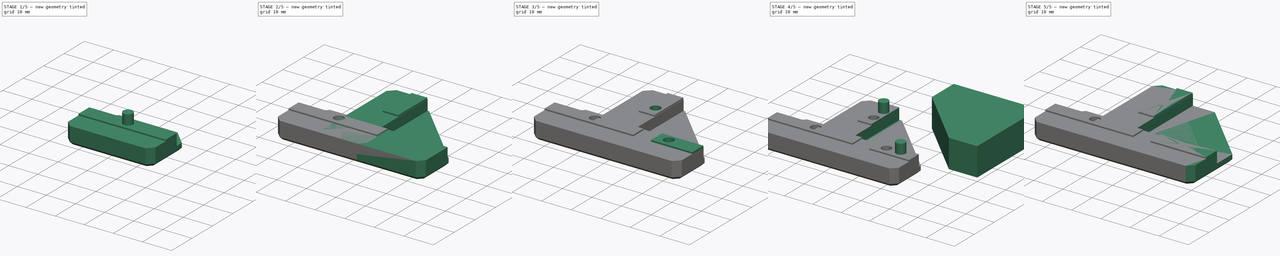
[diagram: build sequence overview — one tinted view per stage of 5, left to right]
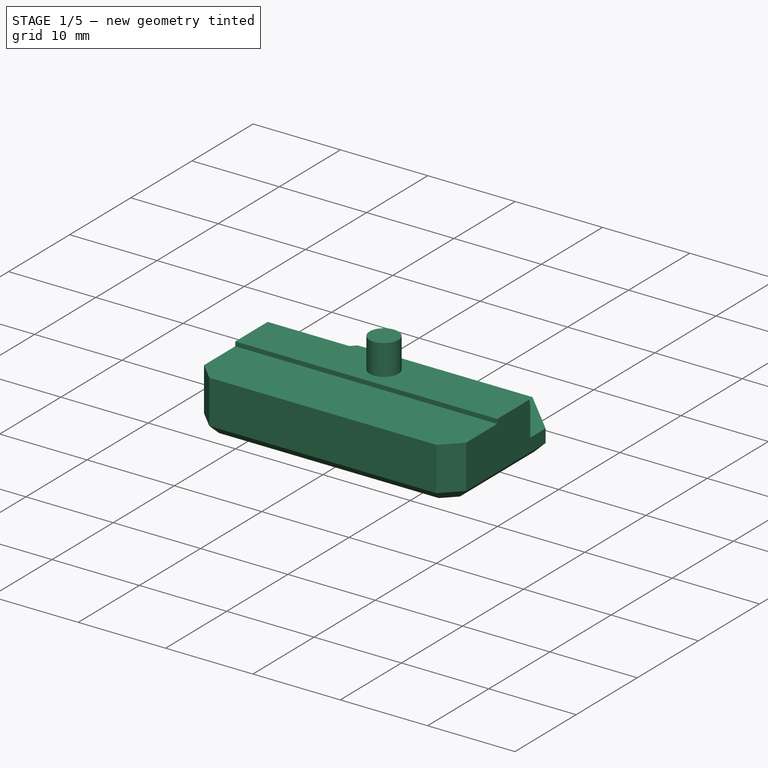
[diagram: stage 1 of 5 — iso view after this stage's code; geometry added in this stage tinted green]
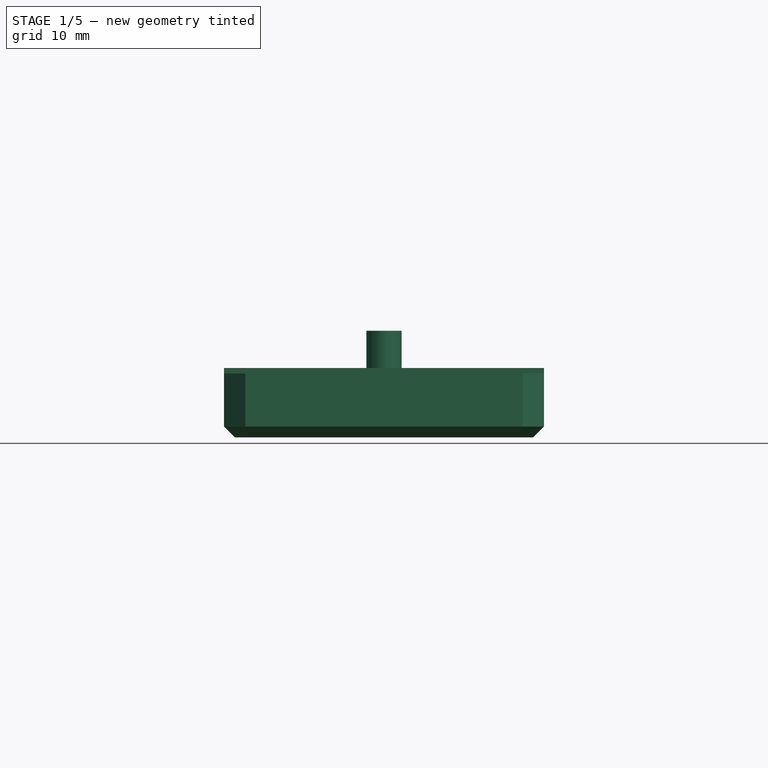
[diagram: stage 1 of 5 — front view after this stage's code; geometry added in this stage tinted green]
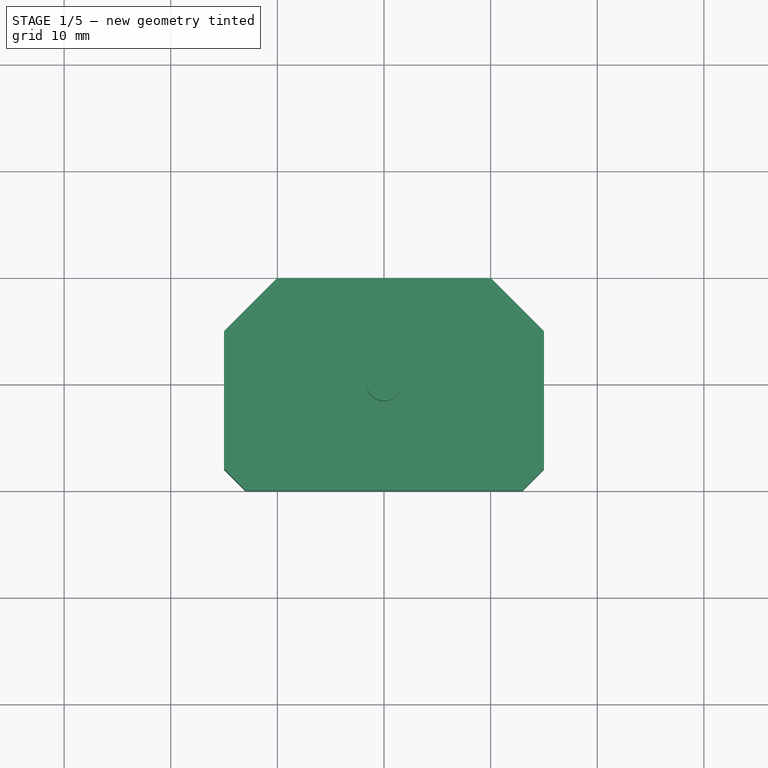
[diagram: stage 1 of 5 — top view after this stage's code; geometry added in this stage tinted green]
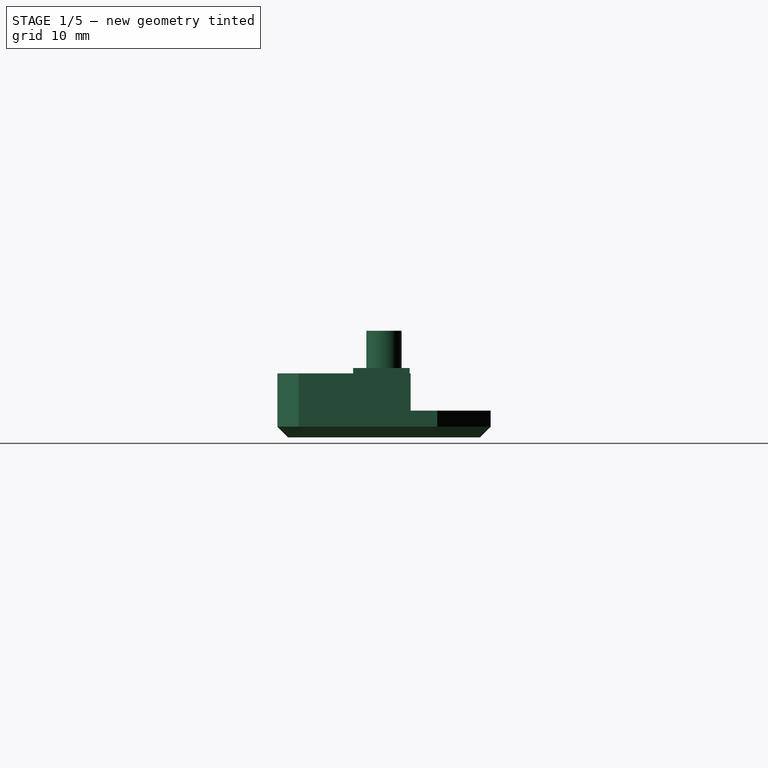
[diagram: stage 1 of 5 — right view after this stage's code; geometry added in this stage tinted green]
FCSTD DOCUMENT  (FreeCAD 0.19R24291 (Git))
Label: panel-mount
License: Other
LicenseURL: GPL3
objects: Part::Box×12, Part::MultiFuse×11, Part::Cylinder×10, Part::Chamfer×9, Part::Cut×7, PartDesign::FeatureBase×2, Sketcher::SketchObject×2, PartDesign::Pocket×2, PartDesign::Body×2
note: 59 computed .brp shape members not serialized (recipe doc carries the construction recipe); baked Part::Feature solids carry a one-line shape summary decoded from their .brp

FEATURE [Part::Box] Box004  label="Cube004"
  AttacherType = Attacher::AttachEngine3D
  Height = 6
  Length = 30
  Placement = pos=(-15,0,0) rot=(0,0,1;0rad)
  Width = 20
FEATURE [Part::Box] Box005  label="Cube005"
  AttacherType = Attacher::AttachEngine3D
  Height = 6
  Length = 40
  Placement = pos=(-20,12.5,2.5) rot=(0,0,1;0rad)
  Width = 30
FEATURE [Part::Box] Box006  label="Cube006"
  AttacherType = Attacher::AttachEngine3D
  Height = 0.5
  Length = 30
  Placement = pos=(-15,7.1,6) rot=(0,0,1;0rad)
  Width = 5.3
FEATURE [Part::Cylinder] Cylinder004
  Angle = 360
  AttacherType = Attacher::AttachEngine3D
  Height = 10
  Placement = pos=(0,10,0) rot=(0,0,1;0rad)
  Radius = 1.65
FEATURE [Part::Cylinder] Cylinder005
  Angle = 360
  AttacherType = Attacher::AttachEngine3D
  Height = 2
  Placement = pos=(0,10,0) rot=(0,0,1;0rad)
  Radius = 3
FEATURE [Part::MultiFuse] Fusion005
  Shapes = -> [Cylinder005,Cylinder004]
FEATURE [Part::Cut] Cut005
  Base = -> Box004
  Tool = -> Box005
FEATURE [Part::MultiFuse] Fusion006
  Shapes = -> [Cut005,Box006]
FEATURE [Part::Chamfer] Chamfer007
  Base = -> Fusion006
  Edges = 2 edges r=5: [Edge6,Edge22]
FEATURE [Part::Chamfer] Chamfer008
  Base = -> Chamfer007
  Edges = 2 edges r=2: [Edge6,Edge24]
FEATURE [Part::Chamfer] Chamfer009
  Base = -> Chamfer008
  Edges = 8 edges r=1: [Edge3,Edge14,Edge19,Edge20,Edge21,Edge22,Edge23,Edge24]
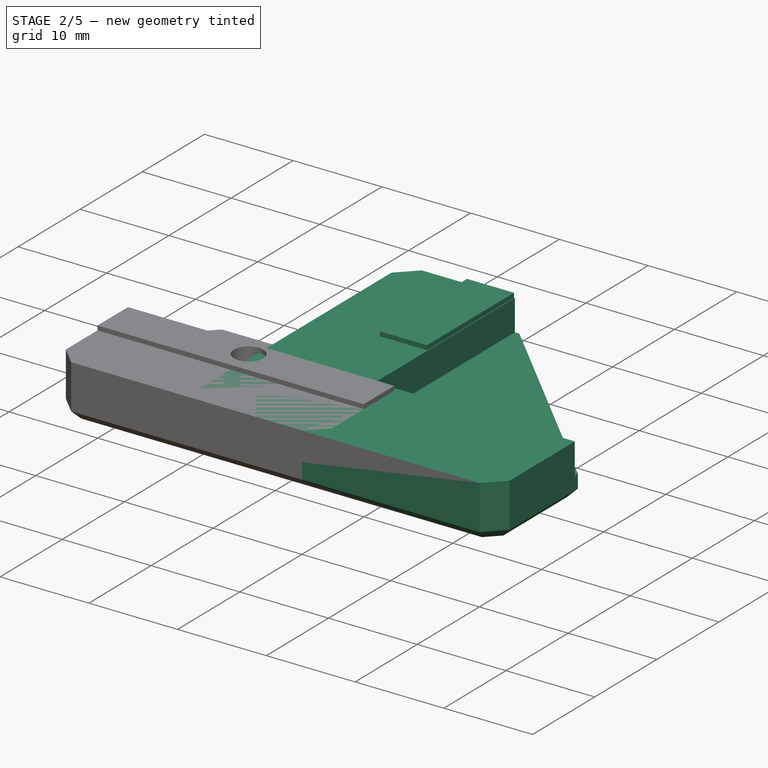
[diagram: stage 2 of 5 — iso view after this stage's code; geometry added in this stage tinted green]
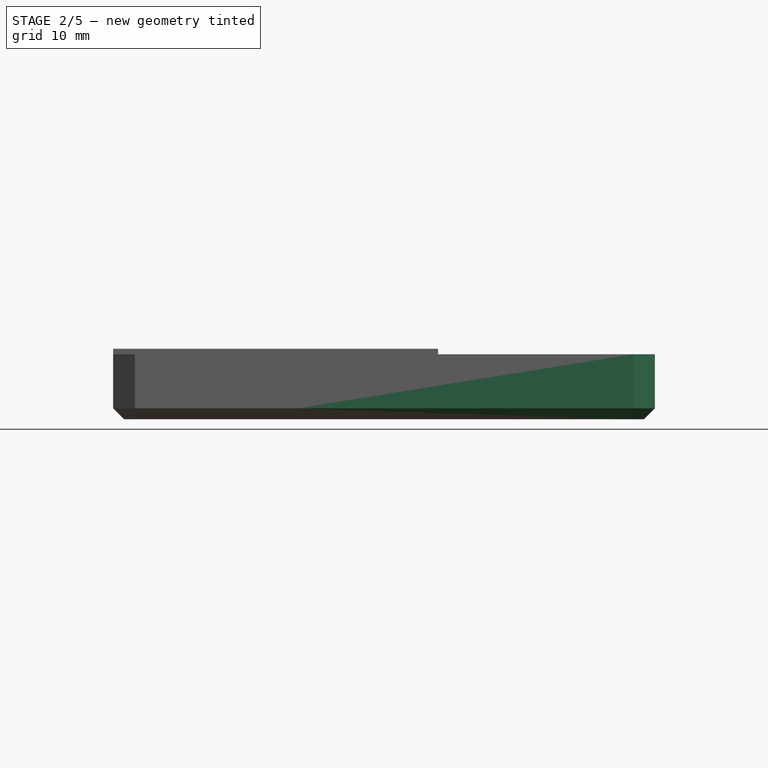
[diagram: stage 2 of 5 — front view after this stage's code; geometry added in this stage tinted green]
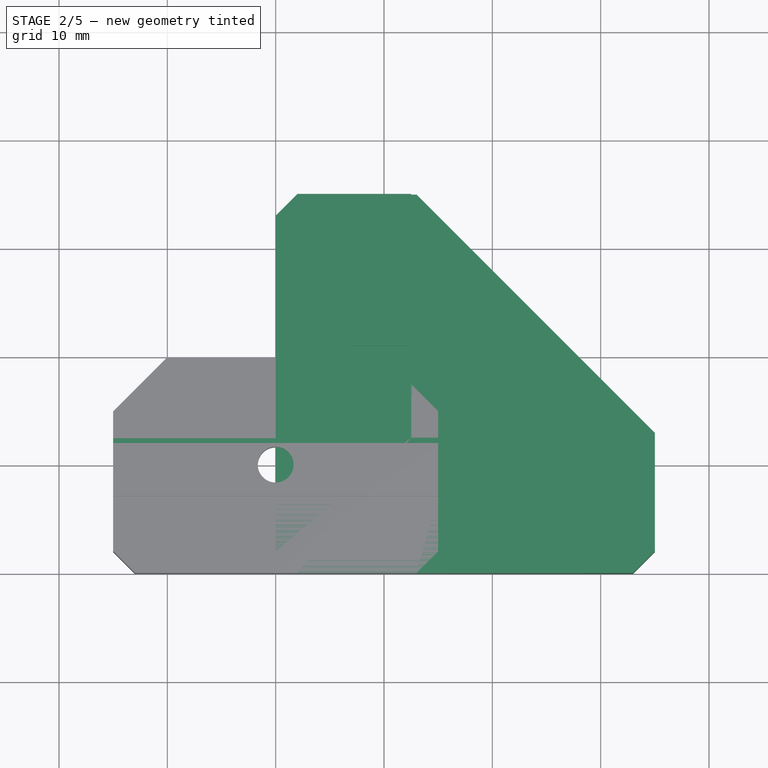
[diagram: stage 2 of 5 — top view after this stage's code; geometry added in this stage tinted green]
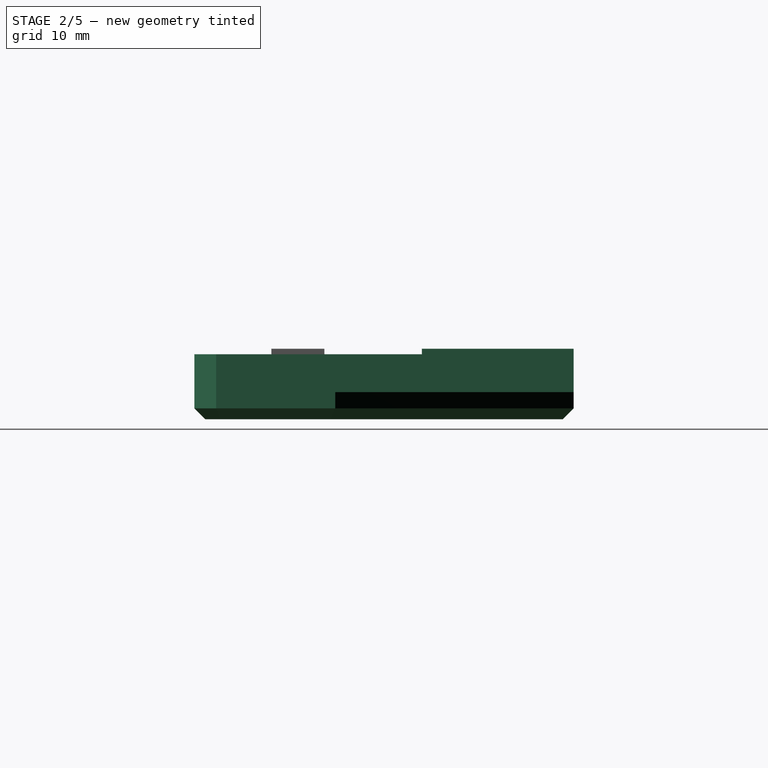
[diagram: stage 2 of 5 — right view after this stage's code; geometry added in this stage tinted green]
FEATURE [Part::Box] Box  label="Cube"
  AttacherType = Attacher::AttachEngine3D
  Height = 6
  Length = 35
  Width = 35
FEATURE [Part::Box] Box001  label="Cube001"
  AttacherType = Attacher::AttachEngine3D
  Height = 6
  Length = 35
  Placement = pos=(12.5,12.5,2.5) rot=(0,0,1;0rad)
  Width = 35
FEATURE [Part::Cut] Cut
  Base = -> Box
  Tool = -> Box001
FEATURE [Part::Chamfer] Chamfer
  Base = -> Cut
  Edges = 1 edges r=22: [Edge12]
FEATURE [Part::Chamfer] Chamfer001
  Base = -> Chamfer
  Edges = 3 edges r=2: [Edge4,Edge22,Edge24]
FEATURE [Part::Box] Box003  label="Cube003"
  AttacherType = Attacher::AttachEngine3D
  Height = 0.5
  Length = 5.3
  Placement = pos=(7.1,21,6) rot=(0,0,1;0rad)
  Width = 14
FEATURE [Part::Chamfer] Chamfer006
  Base = -> Chamfer001
  Edges = 8 edges r=1: [Edge1,Edge7,Edge8,Edge9,Edge10,Edge11,Edge12,Edge13]
FEATURE [Part::Cut] Cut006
  Base = -> Chamfer009
  Tool = -> Fusion005
FEATURE [PartDesign::Body] Body
  BaseFeature = -> Cut004
  Group = -> [BaseFeature,Sketch,Pocket]
  Origin = -> Origin
  Tip = -> Pocket
FEATURE [PartDesign::FeatureBase] BaseFeature001
  BaseFeature = -> Cut006
FEATURE [Sketcher::SketchObject] Sketch001
  FullyConstrained = false
  MapMode = 5
  Placement = pos=(0,0,6.5) rot=(0,0,1;0rad)
  Support = -> [BaseFeature001]
  sketch-geometry (4):
    g0: LineSegment StartX=-16 StartY=12 StartZ=0 EndX=16 EndY=12 EndZ=0
    g1: LineSegment StartX=16 StartY=12 StartZ=0 EndX=16 EndY=21 EndZ=0
    g2: LineSegment StartX=16 StartY=21 StartZ=0 EndX=-16 EndY=21 EndZ=0
    g3: LineSegment StartX=-16 StartY=21 StartZ=0 EndX=-16 EndY=12 EndZ=0
  constraints (8):
    c: Coincident(g0,g1)
    c: Coincident(g1,g2)
    c: Coincident(g2,g3)
    c: Coincident(g3,g0)
    c: Horizontal(g0)
    c: Horizontal(g2)
    c: Vertical(g1)
    c: Vertical(g3)
FEATURE [PartDesign::Pocket] Pocket001
  BaseFeature = -> BaseFeature001
  Length = 0
  Length2 = 100
  Profile = -> Sketch001
  Type = 3
  UpToFace = -> BaseFeature001 [Face5]
FEATURE [PartDesign::Body] Body001
  BaseFeature = -> Cut006
  Group = -> [BaseFeature001,Sketch001,Pocket001]
  Origin = -> Origin001
  Tip = -> Pocket001
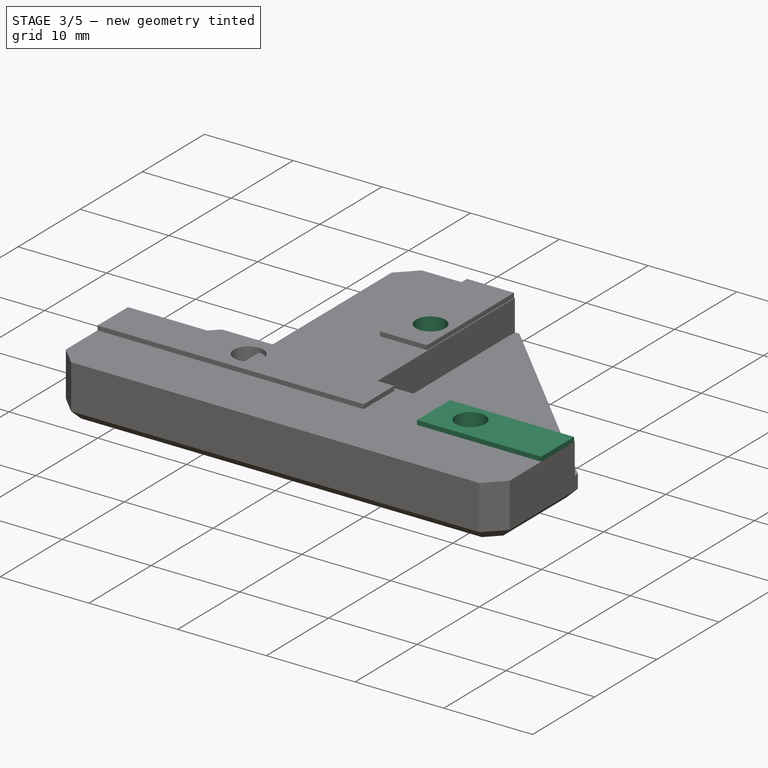
[diagram: stage 3 of 5 — iso view after this stage's code; geometry added in this stage tinted green]
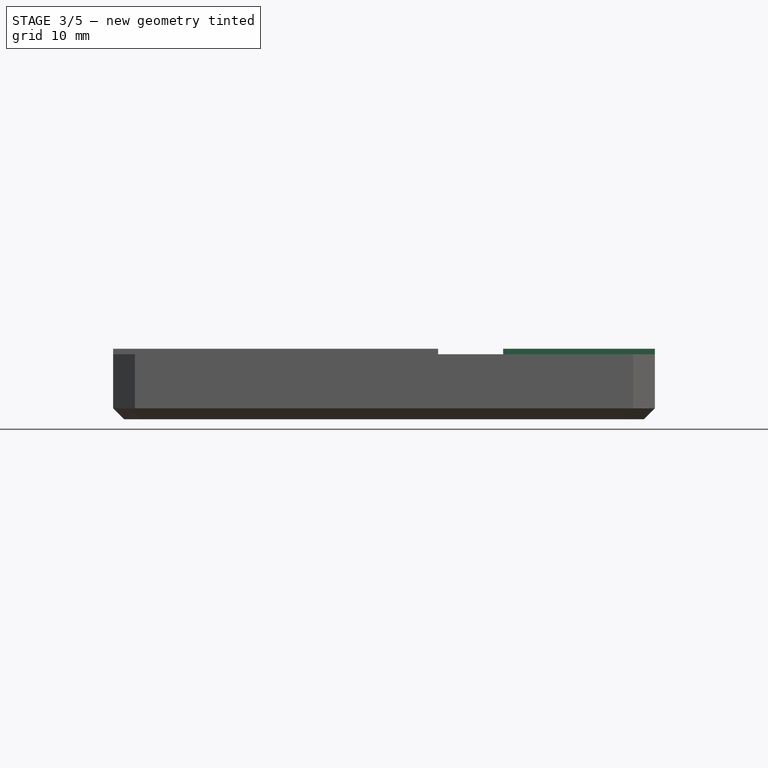
[diagram: stage 3 of 5 — front view after this stage's code; geometry added in this stage tinted green]
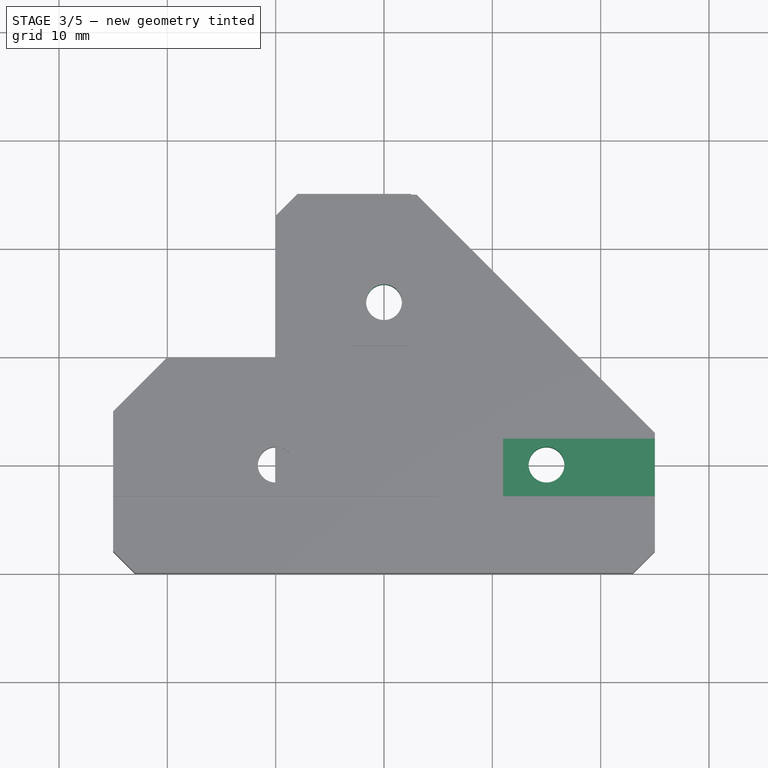
[diagram: stage 3 of 5 — top view after this stage's code; geometry added in this stage tinted green]
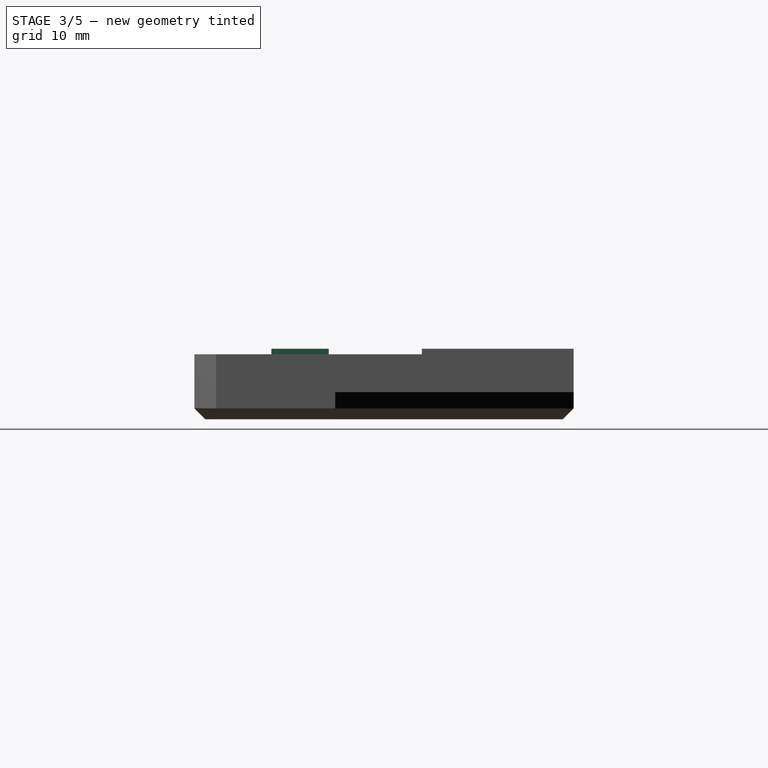
[diagram: stage 3 of 5 — right view after this stage's code; geometry added in this stage tinted green]
FEATURE [Part::Box] Box002  label="Cube002"
  AttacherType = Attacher::AttachEngine3D
  Height = 0.5
  Length = 14
  Placement = pos=(21,7.1,6) rot=(0,0,1;0rad)
  Width = 5.3
FEATURE [Part::Cylinder] Cylinder
  Angle = 360
  AttacherType = Attacher::AttachEngine3D
  Height = 2
  Placement = pos=(25,10,0) rot=(0,0,1;0rad)
  Radius = 3
FEATURE [Part::Cylinder] Cylinder001
  Angle = 360
  AttacherType = Attacher::AttachEngine3D
  Height = 2
  Placement = pos=(10,25,0) rot=(0,0,1;0rad)
  Radius = 3
FEATURE [Part::Cylinder] Cylinder002
  Angle = 360
  AttacherType = Attacher::AttachEngine3D
  Height = 10
  Placement = pos=(10,25,0) rot=(0,0,1;0rad)
  Radius = 1.65
FEATURE [Part::Cylinder] Cylinder003
  Angle = 360
  AttacherType = Attacher::AttachEngine3D
  Height = 10
  Placement = pos=(25,10,0) rot=(0,0,1;0rad)
  Radius = 1.65
FEATURE [Part::MultiFuse] Fusion001
  Shapes = -> [Cylinder003,Cylinder002]
FEATURE [Part::MultiFuse] Fusion002
  Shapes = -> [Cylinder001,Cylinder]
FEATURE [Part::MultiFuse] Fusion003
  Shapes = -> [Fusion002,Fusion001]
FEATURE [Part::MultiFuse] Fusion
  Shapes = -> [Chamfer006,Box003,Box002]
FEATURE [Part::Cut] Cut004
  Base = -> Fusion
  Tool = -> Fusion003
FEATURE [PartDesign::FeatureBase] BaseFeature
  BaseFeature = -> Cut004
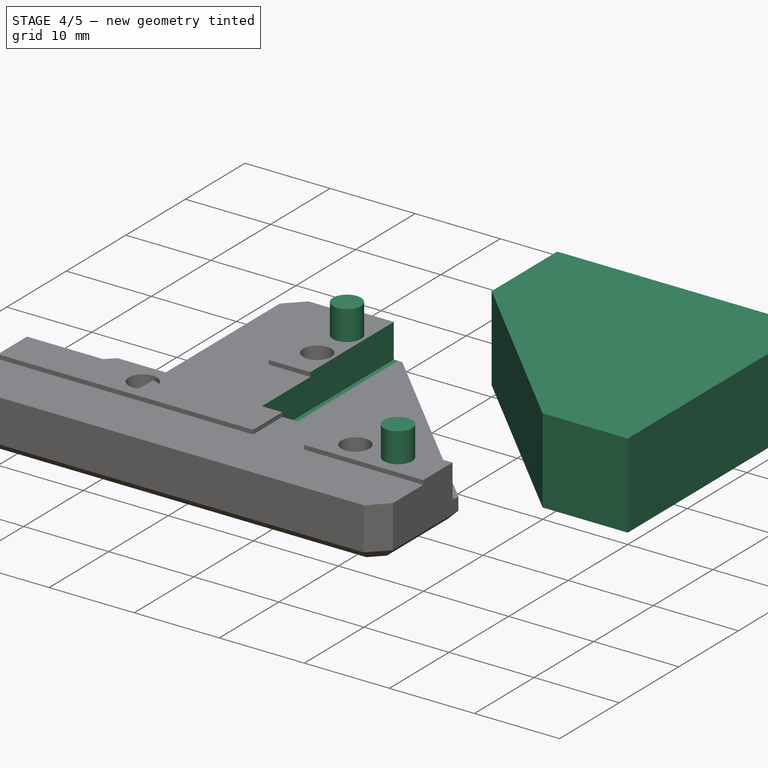
[diagram: stage 4 of 5 — iso view after this stage's code; geometry added in this stage tinted green]
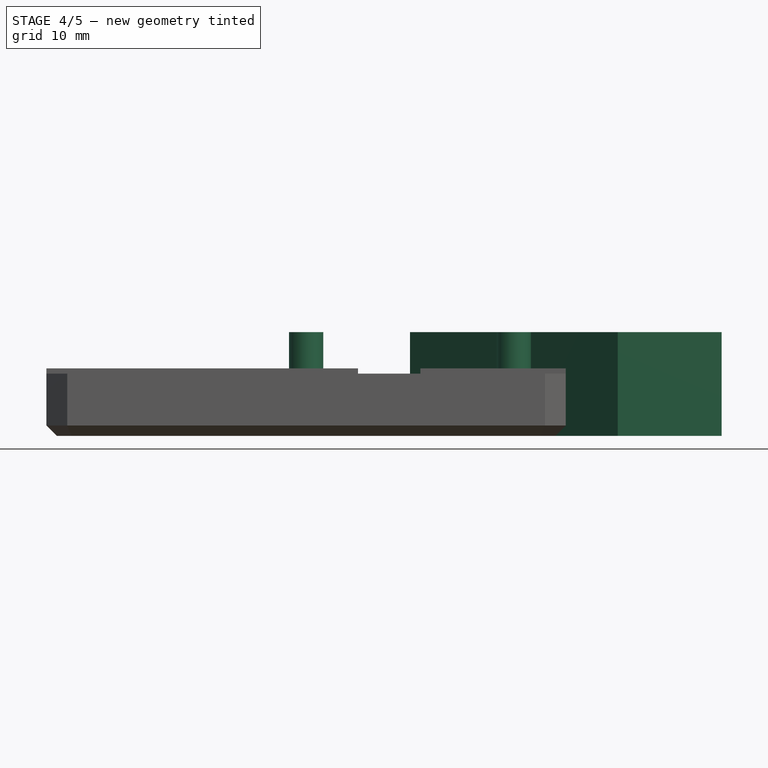
[diagram: stage 4 of 5 — front view after this stage's code; geometry added in this stage tinted green]
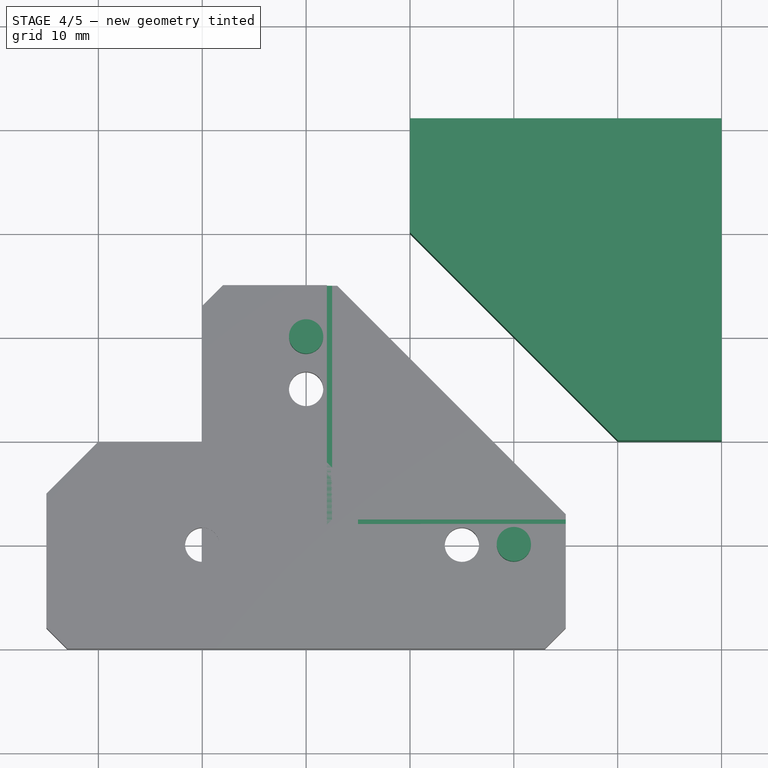
[diagram: stage 4 of 5 — top view after this stage's code; geometry added in this stage tinted green]
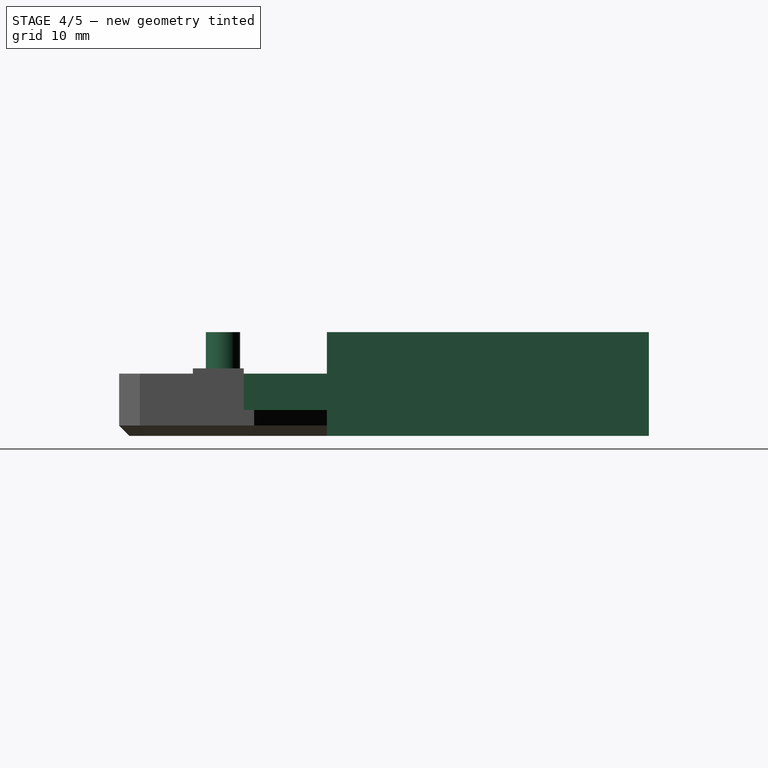
[diagram: stage 4 of 5 — right view after this stage's code; geometry added in this stage tinted green]
FEATURE [Part::Cylinder] Cylinder006
  Angle = 360
  AttacherType = Attacher::AttachEngine3D
  Height = 2
  Placement = pos=(10,25,0) rot=(0,0,1;0rad)
  Radius = 3
FEATURE [Part::Cylinder] Cylinder007
  Angle = 360
  AttacherType = Attacher::AttachEngine3D
  Height = 10
  Placement = pos=(10,25,0) rot=(0,0,1;0rad)
  Radius = 1.65
FEATURE [Part::Cylinder] Cylinder008
  Angle = 360
  AttacherType = Attacher::AttachEngine3D
  Height = 2
  Placement = pos=(25,10,0) rot=(0,0,1;0rad)
  Radius = 3
FEATURE [Part::Cylinder] Cylinder009
  Angle = 360
  AttacherType = Attacher::AttachEngine3D
  Height = 10
  Placement = pos=(25,10,0) rot=(0,0,1;0rad)
  Radius = 1.65
FEATURE [Part::MultiFuse] Fusion008
  Placement = pos=(5,0,0) rot=(0,0,1;0rad)
  Shapes = -> [Cylinder008,Cylinder009]
FEATURE [Part::MultiFuse] Fusion009
  Placement = pos=(0,5,0) rot=(0,0,1;0rad)
  Shapes = -> [Cylinder007,Cylinder006]
FEATURE [Part::Box] Box011  label="Cube011"
  AttacherType = Attacher::AttachEngine3D
  Height = 10
  Length = 30
  Placement = pos=(20,20,0) rot=(0,0,1;0rad)
  Width = 31
FEATURE [Part::Chamfer] Chamfer010
  Base = -> Box011
  Edges = 1 edges r=20: [Edge1]
FEATURE [Part::MultiFuse] Fusion011
  Shapes = -> [Fusion009,Fusion008]
FEATURE [Sketcher::SketchObject] Sketch
  FullyConstrained = false
  MapMode = 5
  Placement = pos=(0,0,6.5) rot=(0,0,1;0rad)
  Support = -> [BaseFeature]
  sketch-geometry (4):
    g0: LineSegment StartX=12 StartY=37 StartZ=0 EndX=36 EndY=37 EndZ=0
    g1: LineSegment StartX=36 StartY=37 StartZ=0 EndX=36 EndY=12 EndZ=0
    g2: LineSegment StartX=36 StartY=12 StartZ=0 EndX=12 EndY=12 EndZ=0
    g3: LineSegment StartX=12 StartY=12 StartZ=0 EndX=12 EndY=37 EndZ=0
  constraints (8):
    c: Coincident(g0,g1)
    c: Coincident(g1,g2)
    c: Coincident(g2,g3)
    c: Coincident(g3,g0)
    c: Horizontal(g0)
    c: Horizontal(g2)
    c: Vertical(g1)
    c: Vertical(g3)
FEATURE [PartDesign::Pocket] Pocket
  BaseFeature = -> BaseFeature
  Length = 0
  Length2 = 100
  Profile = -> Sketch
  Type = 3
  UpToFace = -> BaseFeature [Face6]
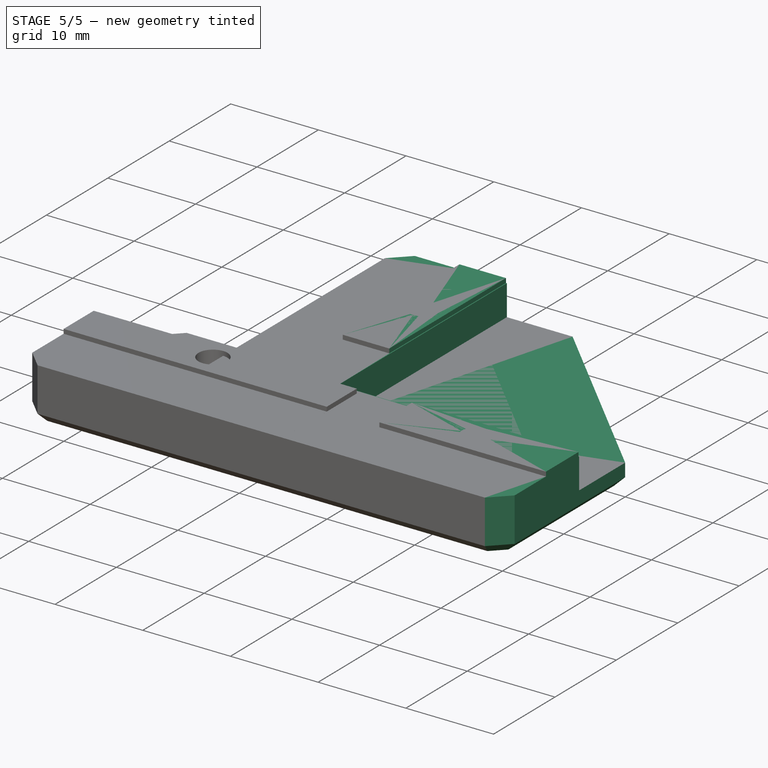
[diagram: stage 5 of 5 — iso view after this stage's code; geometry added in this stage tinted green]
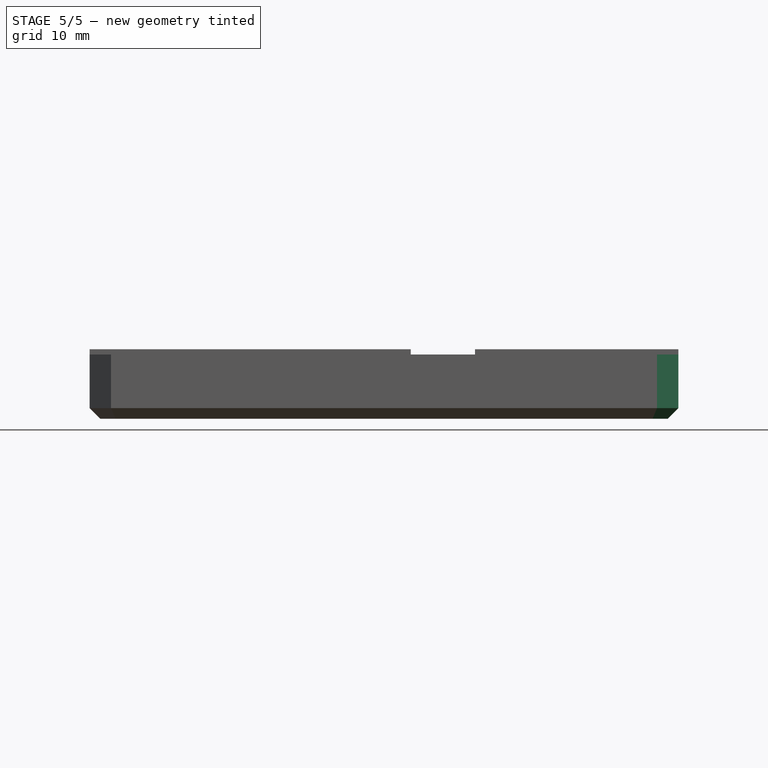
[diagram: stage 5 of 5 — front view after this stage's code; geometry added in this stage tinted green]
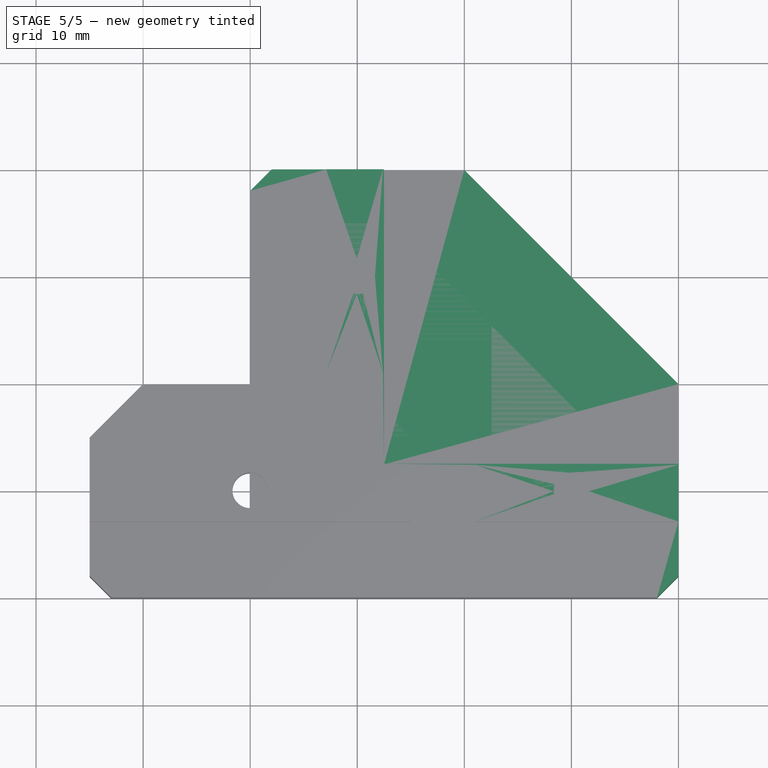
[diagram: stage 5 of 5 — top view after this stage's code; geometry added in this stage tinted green]
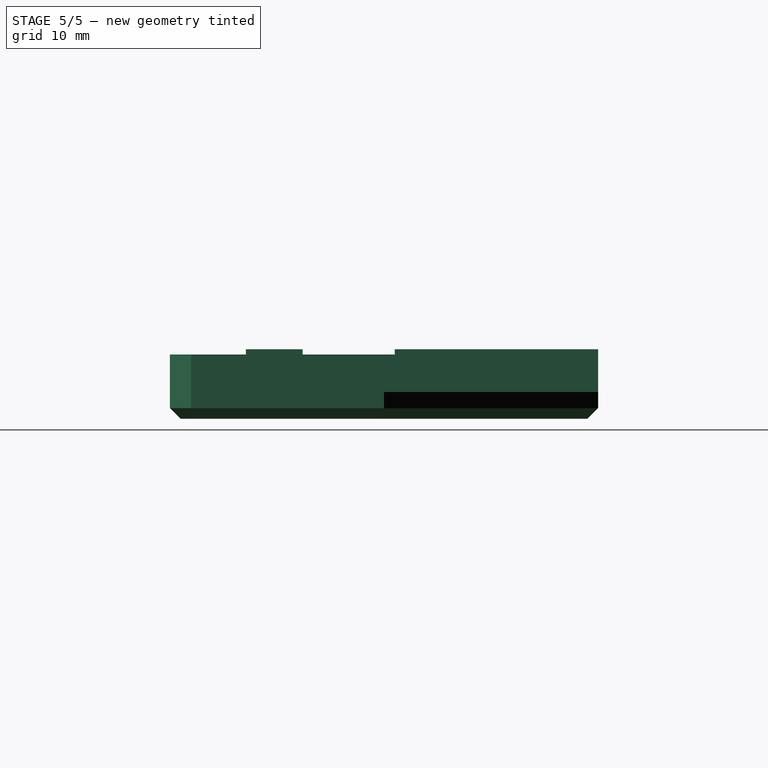
[diagram: stage 5 of 5 — right view after this stage's code; geometry added in this stage tinted green]
FEATURE [Part::Box] Box007  label="Cube007"
  AttacherType = Attacher::AttachEngine3D
  Height = 6
  Length = 35
  Placement = pos=(12.5,12.5,2.5) rot=(0,0,1;0rad)
  Width = 35
FEATURE [Part::Box] Box008  label="Cube008"
  AttacherType = Attacher::AttachEngine3D
  Height = 0.5
  Length = 19
  Placement = pos=(21,7.1,6) rot=(0,0,1;0rad)
  Width = 5.3
FEATURE [Part::Box] Box009  label="Cube009"
  AttacherType = Attacher::AttachEngine3D
  Height = 6
  Length = 40
  Width = 40
FEATURE [Part::Box] Box010  label="Cube010"
  AttacherType = Attacher::AttachEngine3D
  Height = 0.5
  Length = 5.3
  Placement = pos=(7.1,21,6) rot=(0,0,1;0rad)
  Width = 19
FEATURE [Part::Cut] Cut007
  Base = -> Box009
  Tool = -> Box007
FEATURE [Part::MultiFuse] Fusion007
  Shapes = -> [Box010,Box008]
FEATURE [Part::Cut] Cut008
  Base = -> Cut007
  Tool = -> Chamfer010
FEATURE [Part::Chamfer] Chamfer011
  Base = -> Cut008
  Edges = 3 edges r=2: [Edge1,Edge3,Edge6]
FEATURE [Part::Chamfer] Chamfer012
  Base = -> Chamfer011
  Edges = 8 edges r=1: [Edge3,Edge13,Edge15,Edge17,Edge18,Edge19,Edge20,Edge21]
FEATURE [Part::MultiFuse] Fusion010
  Shapes = -> [Fusion007,Chamfer012]
FEATURE [Part::Cut] Cut009
  Base = -> Fusion010
  Tool = -> Fusion011
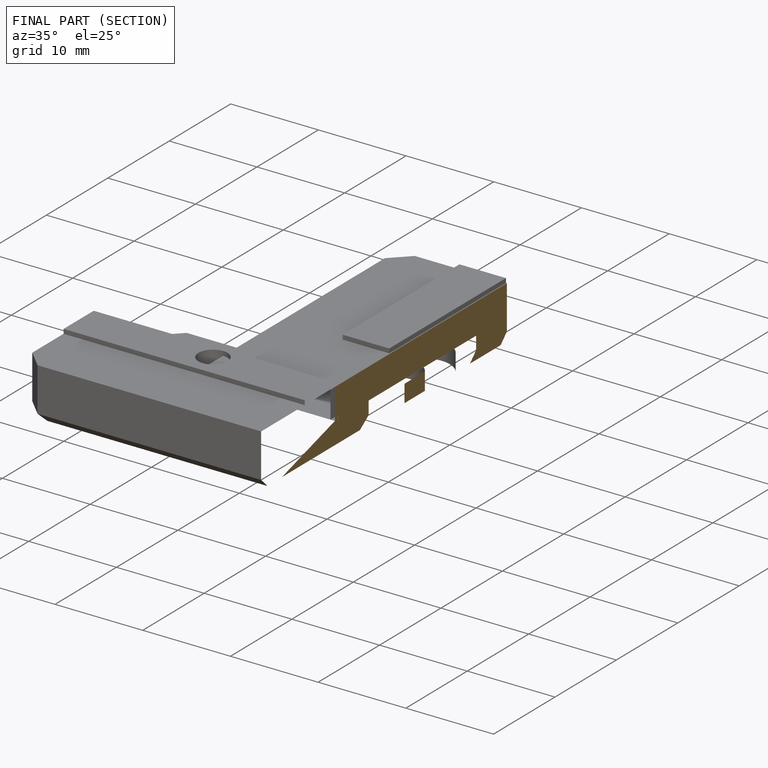
[diagram: finished part — half-section view (interior)]
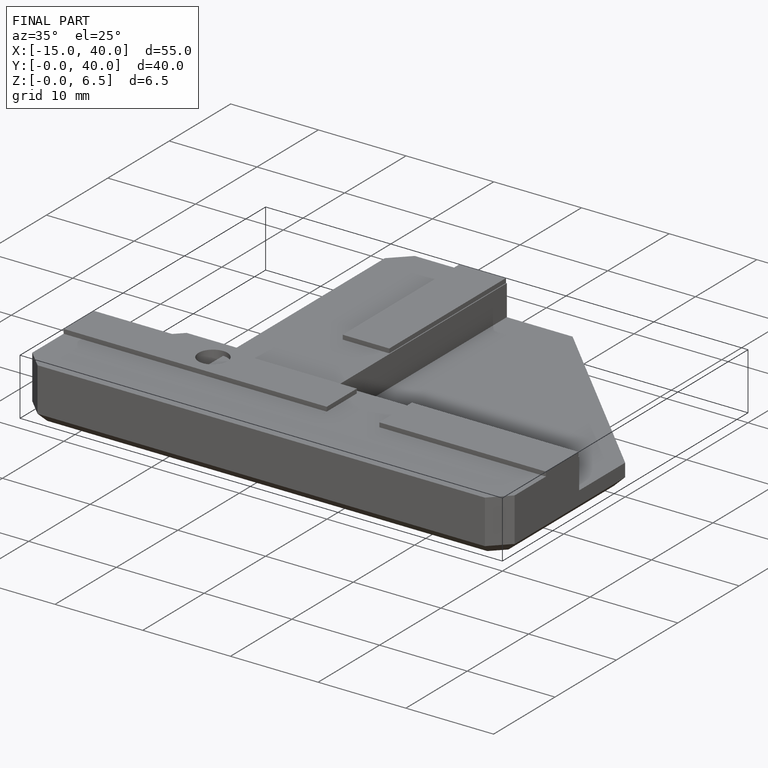
[diagram: finished part — iso view with bounding-box wireframe]
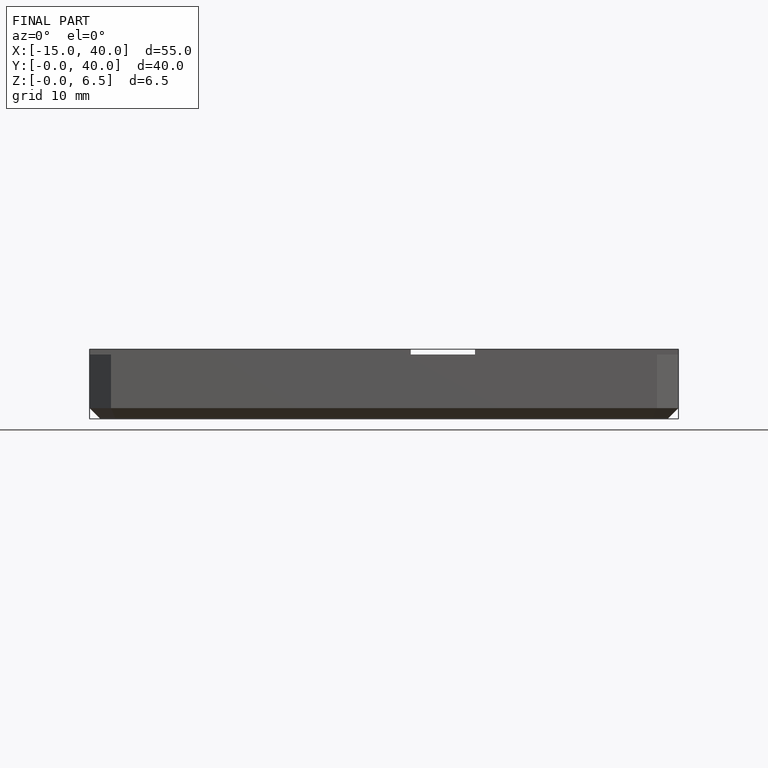
[diagram: finished part — front view with bounding-box wireframe]
